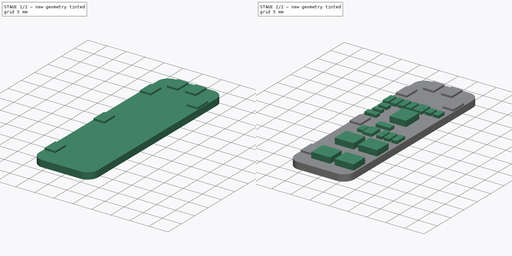
[diagram: build sequence overview — one tinted view per stage of 2, left to right]
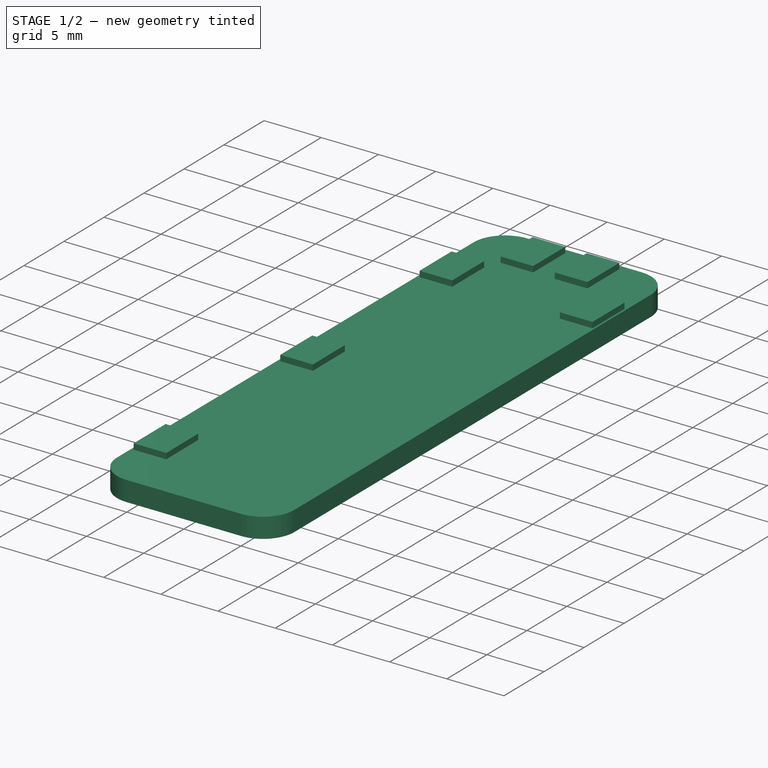
[diagram: stage 1 of 2 — iso view after this stage's code; geometry added in this stage tinted green]
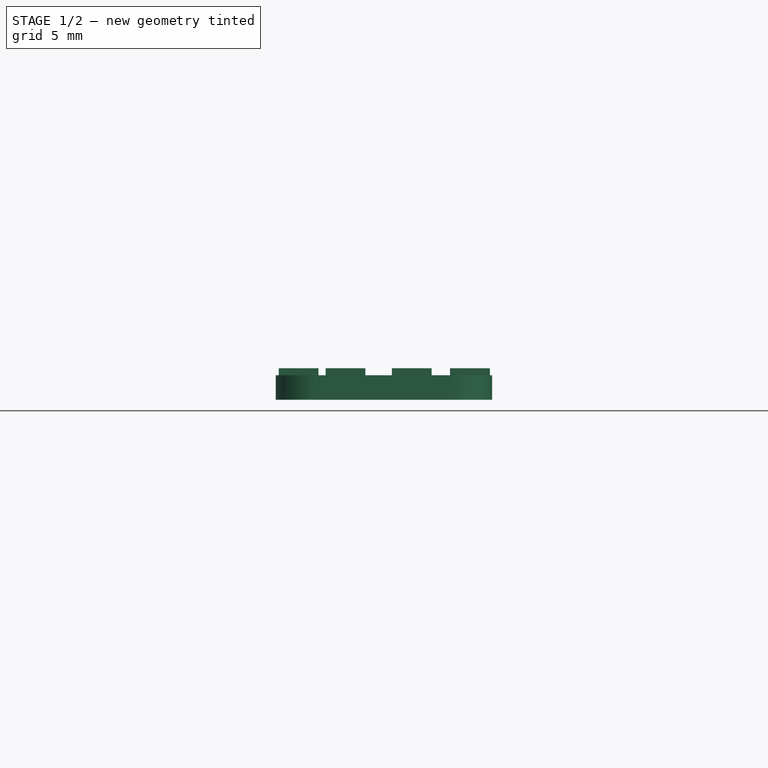
[diagram: stage 1 of 2 — front view after this stage's code; geometry added in this stage tinted green]
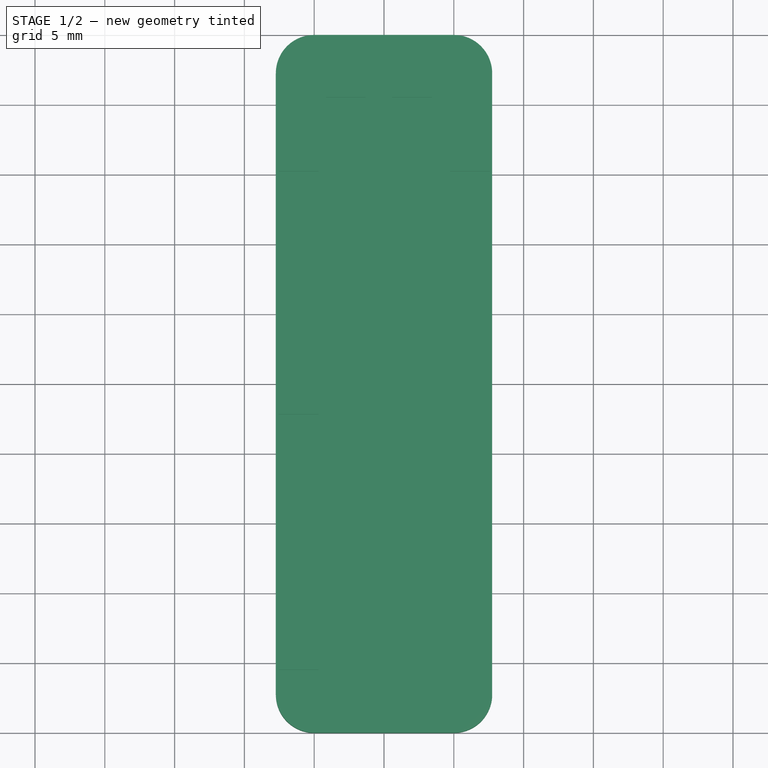
[diagram: stage 1 of 2 — top view after this stage's code; geometry added in this stage tinted green]
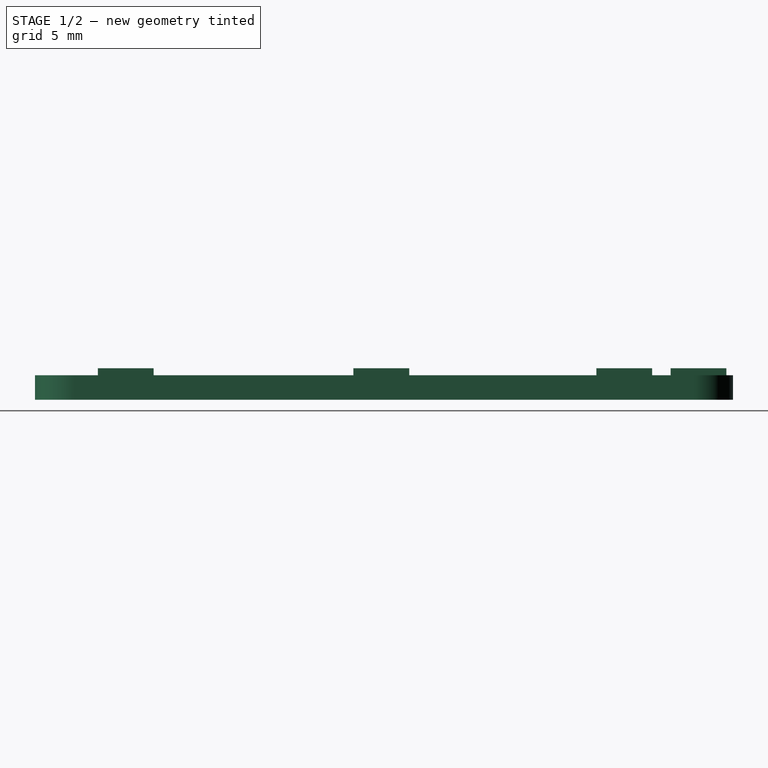
[diagram: stage 1 of 2 — right view after this stage's code; geometry added in this stage tinted green]
FCSTD DOCUMENT  (FreeCAD 1.0R39109 (Git))
Label: bms_186503s
License: All rights reserved
LicenseURL: http://en.wikipedia.org/wiki/All_rights_reserved
objects: Sketcher::SketchObject×4, PartDesign::Pad×4, Image::ImagePlane×1, PartDesign::Body×1
note: 21 computed .brp shape members not serialized (recipe doc carries the construction recipe); baked Part::Feature solids carry a one-line shape summary decoded from their .brp

FEATURE [Sketcher::SketchObject] Sketch
  ArcFitTolerance = 1e-06
  AttachmentSupport = -> [XY_Plane]
  FullyConstrained = true
  MakeInternals = false
  MapMode = 5
  sketch-geometry (10):
    g0: LineSegment StartX=-7.75 StartY=22.25 StartZ=0 EndX=-7.75 EndY=-22.25 EndZ=0
    g1: LineSegment StartX=-5 StartY=-25 StartZ=0 EndX=5 EndY=-25 EndZ=0
    g2: LineSegment StartX=7.75 StartY=-22.25 StartZ=0 EndX=7.75 EndY=22.25 EndZ=0
    g3: LineSegment StartX=5 StartY=25 StartZ=0 EndX=-5 EndY=25 EndZ=0
    g4: ArcOfCircle CenterX=-5 CenterY=22.25 CenterZ=0 NormalX=0 NormalY=0 NormalZ=1 AngleXU=0 Radius=2.75 StartAngle=1.5708 EndAngle=3.14159
    g5: ArcOfCircle CenterX=-5 CenterY=-22.25 CenterZ=0 NormalX=0 NormalY=0 NormalZ=1 AngleXU=0 Radius=2.75 StartAngle=3.14159 EndAngle=4.71239
    g6: ArcOfCircle CenterX=5 CenterY=-22.25 CenterZ=0 NormalX=0 NormalY=0 NormalZ=1 AngleXU=0 Radius=2.75 StartAngle=4.71239 EndAngle=6.28319
    g7: ArcOfCircle CenterX=5 CenterY=22.25 CenterZ=0 NormalX=0 NormalY=0 NormalZ=1 AngleXU=0 Radius=2.75 StartAngle=0 EndAngle=1.5708
    g8: GeomPoint [constr] X=-7.75 Y=25 Z=0
    g9: GeomPoint [constr] X=7.75 Y=-25 Z=0
  constraints (23):
    c: Tangent(g0,g4) = -1.5708
    c: Tangent(g0,g5) = -1.5708
    c: Tangent(g1,g5) = -1.5708
    c: Tangent(g1,g6) = -1.5708
    c: Tangent(g2,g6) = -1.5708
    c: Tangent(g2,g7) = -1.5708
    c: Tangent(g3,g7) = -1.5708
    c: Tangent(g3,g4) = -1.5708
    c: Vertical(g0)
    c: Vertical(g2)
    c: Horizontal(g1)
    c: Horizontal(g3)
    c: Equal(g4,g5)
    c: Equal(g5,g6)
    c: Equal(g6,g7)
    c: PointOnObject(g8,g0)
    c: PointOnObject(g8,g3)
    c: PointOnObject(g9,g1)
    c: PointOnObject(g9,g2)
    c: Symmetric(g9,g8,g-1)
    c: DistanceX(g0,g2) = 15.5
    c: DistanceY(g1,g3) = 50
    c: DistanceX(g1,g1) = 10
FEATURE [PartDesign::Pad] Pad  label="PCBPad"
  Direction = (0,0,1)
  Length = 1.75
  Length2 = 10
  Profile = -> Sketch
  ReferenceAxis = -> Sketch [N_Axis]
  Refine = true
  Suppressed = false
  Type = 0
FEATURE [Image::ImagePlane] bms3s
  Placement = pos=(0,0,0) rot=(0,0,1;1.5708rad)
  XSize = 56.907
  YSize = 21.0735
  expr: XSize = 126.46 * 0.45 mm
  expr: YSize = 46.83 * 0.45 mm
FEATURE [Sketcher::SketchObject] Sketch001
  ArcFitTolerance = 1e-06
  AttachmentSupport = -> [Pad]
  FullyConstrained = true
  MakeInternals = false
  MapMode = 5
  Placement = pos=(0,0,1.75) rot=(0,0,1;0rad)
  sketch-geometry (24):
    g0: LineSegment StartX=-7.54 StartY=19.21 StartZ=0 EndX=-7.54 EndY=15.21 EndZ=0
    g1: LineSegment StartX=-7.54 StartY=15.21 StartZ=0 EndX=-4.69 EndY=15.21 EndZ=0
    g2: LineSegment StartX=-4.69 StartY=15.21 StartZ=0 EndX=-4.69 EndY=19.21 EndZ=0
    g3: LineSegment StartX=-4.69 StartY=19.21 StartZ=0 EndX=-7.54 EndY=19.21 EndZ=0
    g4: LineSegment StartX=-4.18 StartY=24.53 StartZ=0 EndX=-4.18 EndY=20.53 EndZ=0
    g5: LineSegment StartX=-4.18 StartY=20.53 StartZ=0 EndX=-1.33 EndY=20.53 EndZ=0
    g6: LineSegment StartX=-1.33 StartY=20.53 StartZ=0 EndX=-1.33 EndY=24.53 EndZ=0
    g7: LineSegment StartX=-1.33 StartY=24.53 StartZ=0 EndX=-4.18 EndY=24.53 EndZ=0
    g8: LineSegment StartX=0.56 StartY=24.53 StartZ=0 EndX=0.56 EndY=20.53 EndZ=0
    g9: LineSegment StartX=0.56 StartY=20.53 StartZ=0 EndX=3.41 EndY=20.53 EndZ=0
    g10: LineSegment StartX=3.41 StartY=20.53 StartZ=0 EndX=3.41 EndY=24.53 EndZ=0
    g11: LineSegment StartX=3.41 StartY=24.53 StartZ=0 EndX=0.56 EndY=24.53 EndZ=0
    g12: LineSegment StartX=4.73 StartY=19.21 StartZ=0 EndX=4.73 EndY=15.21 EndZ=0
    g13: LineSegment StartX=4.73 StartY=15.21 StartZ=0 EndX=7.58 EndY=15.21 EndZ=0
    g14: LineSegment StartX=7.58 StartY=15.21 StartZ=0 EndX=7.58 EndY=19.21 EndZ=0
    g15: LineSegment StartX=7.58 StartY=19.21 StartZ=0 EndX=4.73 EndY=19.21 EndZ=0
    g16: LineSegment StartX=-7.54 StartY=1.81 StartZ=0 EndX=-7.54 EndY=-2.19 EndZ=0
    g17: LineSegment StartX=-7.54 StartY=-2.19 StartZ=0 EndX=-4.69 EndY=-2.19 EndZ=0
    g18: LineSegment StartX=-4.69 StartY=-2.19 StartZ=0 EndX=-4.69 EndY=1.81 EndZ=0
    g19: LineSegment StartX=-4.69 StartY=1.81 StartZ=0 EndX=-7.54 EndY=1.81 EndZ=0
    g20: LineSegment StartX=-7.54 StartY=-16.5 StartZ=0 EndX=-7.54 EndY=-20.5 EndZ=0
    g21: LineSegment StartX=-7.54 StartY=-20.5 StartZ=0 EndX=-4.69 EndY=-20.5 EndZ=0
    g22: LineSegment StartX=-4.69 StartY=-20.5 StartZ=0 EndX=-4.69 EndY=-16.5 EndZ=0
    g23: LineSegment StartX=-4.69 StartY=-16.5 StartZ=0 EndX=-7.54 EndY=-16.5 EndZ=0
  constraints (72):
    c: Coincident(g0,g1)
    c: Coincident(g1,g2)
    c: Coincident(g2,g3)
    c: Coincident(g3,g0)
    c: Vertical(g0)
    c: Vertical(g2)
    c: Horizontal(g1)
    c: Horizontal(g3)
    c: Coincident(g4,g5)
    c: Coincident(g5,g6)
    c: Coincident(g6,g7)
    c: Coincident(g7,g4)
    c: Vertical(g4)
    c: Vertical(g6)
    c: Horizontal(g5)
    c: Horizontal(g7)
    c: Coincident(g8,g9)
    c: Coincident(g9,g10)
    c: Coincident(g10,g11)
    c: Coincident(g11,g8)
    c: Vertical(g8)
    c: Vertical(g10)
    c: Horizontal(g9)
    c: Horizontal(g11)
    c: Coincident(g12,g13)
    c: Coincident(g13,g14)
    c: Coincident(g14,g15)
    c: Coincident(g15,g12)
    c: Vertical(g12)
    c: Vertical(g14)
    c: Horizontal(g13)
    c: Horizontal(g15)
    c: Coincident(g16,g17)
    c: Coincident(g17,g18)
    c: Coincident(g18,g19)
    c: Coincident(g19,g16)
    c: Vertical(g16)
    c: Vertical(g18)
    c: Horizontal(g17)
    c: Horizontal(g19)
    c: Coincident(g20,g21)
    c: Coincident(g21,g22)
    c: Coincident(g22,g23)
    c: Coincident(g23,g20)
    c: Vertical(g20)
    c: Vertical(g22)
    c: Horizontal(g21)
    c: Horizontal(g23)
    c: Equal(g23,g17)
    c: Equal(g17,g1)
    c: Equal(g1,g13)
    c: Equal(g13,g9)
    c: Equal(g9,g5)
    c: Equal(g4,g8)
    c: Equal(g8,g2)
    c: Equal(g2,g12)
    c: Equal(g12,g18)
    c: Equal(g18,g22)
    c: DistanceY(g22,g22) = 4
    c: DistanceX(g23,g23) = 2.85
    c: Vertical(g22,g17)
    c: Vertical(g17,g1)
    c: Horizontal(g1,g12)
    c: Horizontal(g8,g5)
    c: DistanceX(g5,g8) = 1.89
    c: DistanceY(g12,g9) = 1.32
    c: DistanceX(g2,g4) = 0.51
    c: DistanceX(g18,g-1) = 4.69
    c: DistanceY(g18,g1) = 13.4
    c: DistanceY(g-1,g18) = 1.81
    c: DistanceX(g9,g12) = 1.32
    c: DistanceY(g22,g17) = 14.31
FEATURE [PartDesign::Pad] Pad001  label="SolderPads"
  BaseFeature = -> Pad
  Direction = (0,0,1)
  Length = 0.5
  Length2 = 10
  Profile = -> Sketch001
  ReferenceAxis = -> Sketch001 [N_Axis]
  Refine = true
  Suppressed = false
  Type = 0
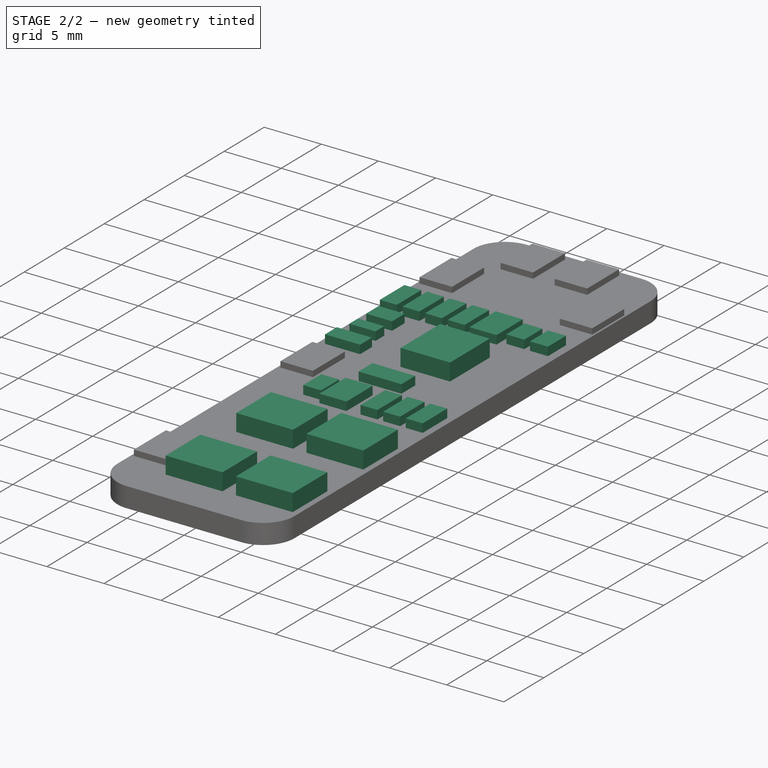
[diagram: stage 2 of 2 — iso view after this stage's code; geometry added in this stage tinted green]
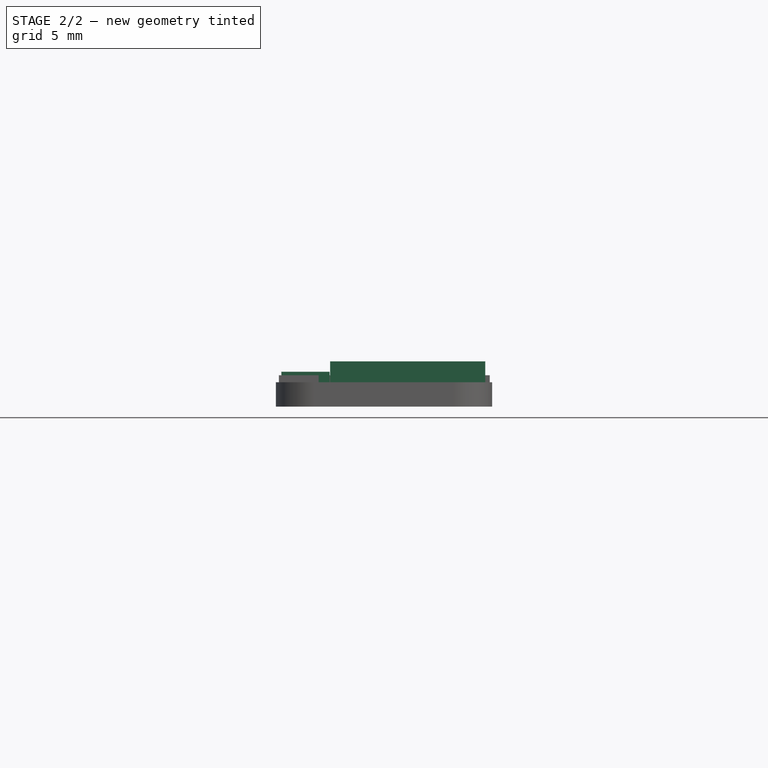
[diagram: stage 2 of 2 — front view after this stage's code; geometry added in this stage tinted green]
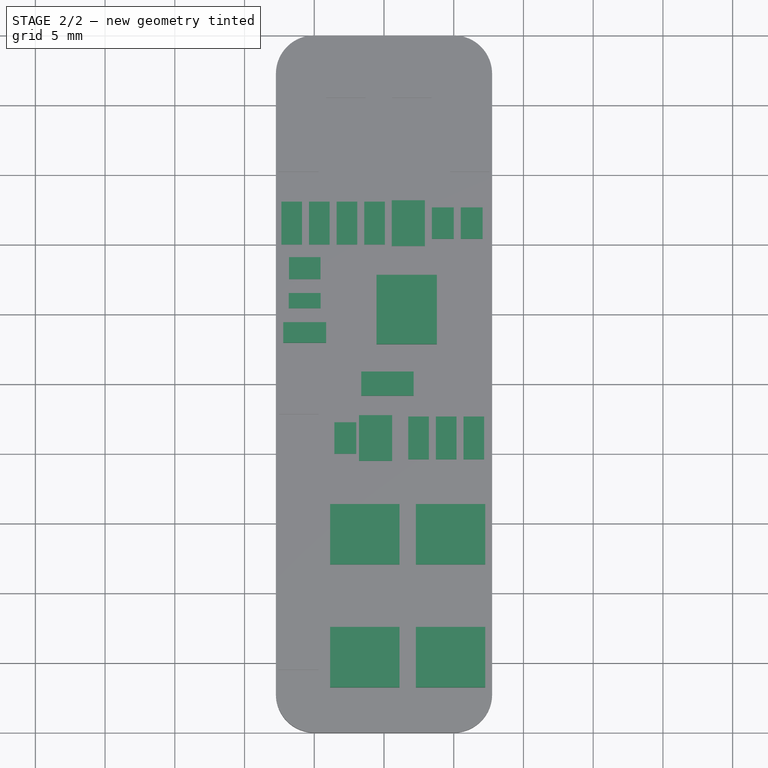
[diagram: stage 2 of 2 — top view after this stage's code; geometry added in this stage tinted green]
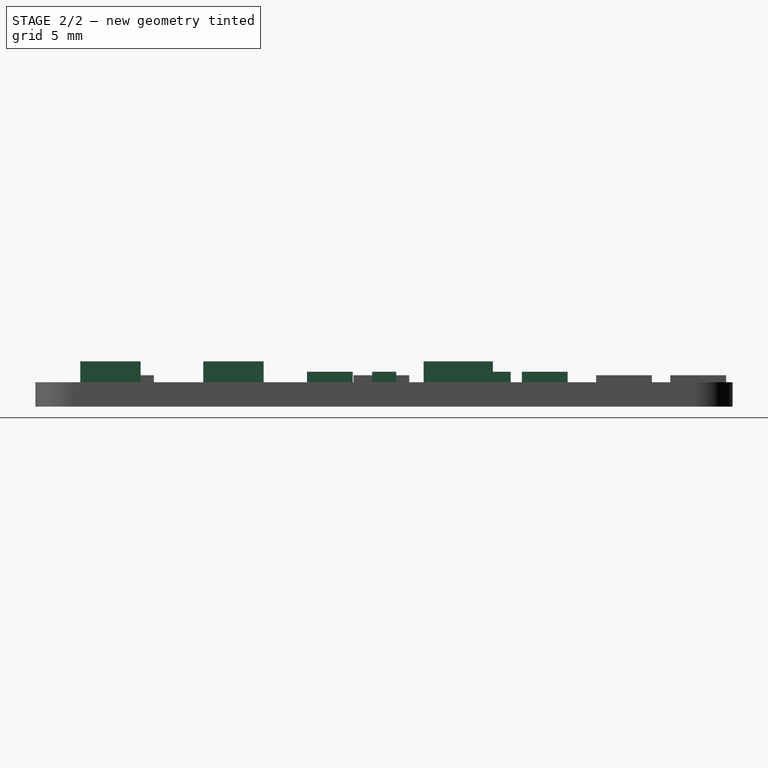
[diagram: stage 2 of 2 — right view after this stage's code; geometry added in this stage tinted green]
FEATURE [Sketcher::SketchObject] Sketch002
  ArcFitTolerance = 1e-06
  AttachmentSupport = -> [Pad001]
  FullyConstrained = true
  MakeInternals = false
  MapMode = 5
  Placement = pos=(0,0,1.75) rot=(0,0,1;0rad)
  sketch-geometry (20):
    g0: LineSegment StartX=-0.54 StartY=7.81 StartZ=0 EndX=-0.54 EndY=2.84 EndZ=0
    g1: LineSegment StartX=-0.54 StartY=2.84 StartZ=0 EndX=3.79 EndY=2.84 EndZ=0
    g2: LineSegment StartX=3.79 StartY=2.84 StartZ=0 EndX=3.79 EndY=7.81 EndZ=0
    g3: LineSegment StartX=3.79 StartY=7.81 StartZ=0 EndX=-0.54 EndY=7.81 EndZ=0
    g4: LineSegment StartX=-3.86 StartY=-8.63 StartZ=0 EndX=-3.86 EndY=-12.96 EndZ=0
    g5: LineSegment StartX=-3.86 StartY=-12.96 StartZ=0 EndX=1.11 EndY=-12.96 EndZ=0
    g6: LineSegment StartX=1.11 StartY=-12.96 StartZ=0 EndX=1.11 EndY=-8.63 EndZ=0
    g7: LineSegment StartX=1.11 StartY=-8.63 StartZ=0 EndX=-3.86 EndY=-8.63 EndZ=0
    g8: LineSegment StartX=2.29 StartY=-8.63 StartZ=0 EndX=2.29 EndY=-12.96 EndZ=0
    g9: LineSegment StartX=2.29 StartY=-12.96 StartZ=0 EndX=7.26 EndY=-12.96 EndZ=0
    g10: LineSegment StartX=7.26 StartY=-12.96 StartZ=0 EndX=7.26 EndY=-8.63 EndZ=0
    g11: LineSegment StartX=7.26 StartY=-8.63 StartZ=0 EndX=2.29 EndY=-8.63 EndZ=0
    g12: LineSegment StartX=-3.86 StartY=-17.45 StartZ=0 EndX=-3.86 EndY=-21.78 EndZ=0
    g13: LineSegment StartX=-3.86 StartY=-21.78 StartZ=0 EndX=1.11 EndY=-21.78 EndZ=0
    g14: LineSegment StartX=1.11 StartY=-21.78 StartZ=0 EndX=1.11 EndY=-17.45 EndZ=0
    g15: LineSegment StartX=1.11 StartY=-17.45 StartZ=0 EndX=-3.86 EndY=-17.45 EndZ=0
    g16: LineSegment StartX=2.29 StartY=-17.45 StartZ=0 EndX=2.29 EndY=-21.78 EndZ=0
    g17: LineSegment StartX=2.29 StartY=-21.78 StartZ=0 EndX=7.26 EndY=-21.78 EndZ=0
    g18: LineSegment StartX=7.26 StartY=-21.78 StartZ=0 EndX=7.26 EndY=-17.45 EndZ=0
    g19: LineSegment StartX=7.26 StartY=-17.45 StartZ=0 EndX=2.29 EndY=-17.45 EndZ=0
  constraints (60):
    c: Coincident(g0,g1)
    c: Coincident(g1,g2)
    c: Coincident(g2,g3)
    c: Coincident(g3,g0)
    c: Vertical(g0)
    c: Vertical(g2)
    c: Horizontal(g1)
    c: Horizontal(g3)
    c: Coincident(g4,g5)
    c: Coincident(g5,g6)
    c: Coincident(g6,g7)
    c: Coincident(g7,g4)
    c: Vertical(g4)
    c: Vertical(g6)
    c: Horizontal(g5)
    c: Horizontal(g7)
    c: Coincident(g8,g9)
    c: Coincident(g9,g10)
    c: Coincident(g10,g11)
    c: Coincident(g11,g8)
    c: Vertical(g8)
    c: Vertical(g10)
    c: Horizontal(g9)
    c: Horizontal(g11)
    c: Coincident(g12,g13)
    c: Coincident(g13,g14)
    c: Coincident(g14,g15)
    c: Coincident(g15,g12)
    c: Vertical(g12)
    c: Vertical(g14)
    c: Horizontal(g13)
    c: Horizontal(g15)
    c: Coincident(g16,g17)
    c: Coincident(g17,g18)
    c: Coincident(g18,g19)
    c: Coincident(g19,g16)
    c: Vertical(g16)
    c: Vertical(g18)
    c: Horizontal(g17)
    c: Horizontal(g19)
    c: Equal(g11,g7)
    c: Equal(g7,g19)
    c: Equal(g19,g15)
    c: Equal(g15,g2)
    c: Equal(g8,g6)
    c: Equal(g6,g14)
    c: Equal(g14,g16)
    c: Equal(g16,g1)
    c: Horizontal(g8,g5)
    c: Horizontal(g14,g16)
    c: Vertical(g14,g5)
    c: Vertical(g16,g8)
    c: DistanceY(g4) = -8.63
    c: DistanceX(g4) = -3.86
    c: DistanceX(g6,g8) = 1.18
    c: DistanceY(g12,g4) = 4.49
    c: DistanceX(g17,g17) = 4.97
    c: DistanceY(g18,g18) = 4.33
    c: DistanceY(g1) = 2.84
    c: DistanceX(g0) = -0.54
FEATURE [PartDesign::Pad] Pad002  label="ChipsPad"
  BaseFeature = -> Pad001
  Direction = (0,0,1)
  Length = 1.5
  Length2 = 10
  Profile = -> Sketch002
  ReferenceAxis = -> Sketch002 [N_Axis]
  Refine = true
  Suppressed = false
  Type = 0
FEATURE [Sketcher::SketchObject] Sketch003
  ArcFitTolerance = 1e-06
  AttachmentSupport = -> [Pad002]
  FullyConstrained = true
  MakeInternals = false
  MapMode = 5
  Placement = pos=(0,0,1.75) rot=(0,0,1;0rad)
  sketch-geometry (84):
    g0: LineSegment StartX=-3.56 StartY=-2.755 StartZ=0 EndX=-3.56 EndY=-5.015 EndZ=0
    g1: LineSegment StartX=-3.56 StartY=-5.015 StartZ=0 EndX=-1.99 EndY=-5.015 EndZ=0
    g2: LineSegment StartX=-1.99 StartY=-5.015 StartZ=0 EndX=-1.99 EndY=-2.755 EndZ=0
    g3: LineSegment StartX=-1.99 StartY=-2.755 StartZ=0 EndX=-3.56 EndY=-2.755 EndZ=0
    g4: LineSegment StartX=-1.79 StartY=-2.245 StartZ=0 EndX=-1.79 EndY=-5.525 EndZ=0
    g5: LineSegment StartX=-1.79 StartY=-5.525 StartZ=0 EndX=0.58 EndY=-5.525 EndZ=0
    g6: LineSegment StartX=0.58 StartY=-5.525 StartZ=0 EndX=0.58 EndY=-2.245 EndZ=0
    g7: LineSegment StartX=0.58 StartY=-2.245 StartZ=0 EndX=-1.79 EndY=-2.245 EndZ=0
    g8: LineSegment StartX=1.74 StartY=-2.35 StartZ=0 EndX=1.74 EndY=-5.42 EndZ=0
    g9: LineSegment StartX=1.74 StartY=-5.42 StartZ=0 EndX=3.22 EndY=-5.42 EndZ=0
    g10: LineSegment StartX=3.22 StartY=-5.42 StartZ=0 EndX=3.22 EndY=-2.35 EndZ=0
    g11: LineSegment StartX=3.22 StartY=-2.35 StartZ=0 EndX=1.74 EndY=-2.35 EndZ=0
    g12: LineSegment StartX=3.72 StartY=-2.35 StartZ=0 EndX=3.72 EndY=-5.42 EndZ=0
    g13: LineSegment StartX=3.72 StartY=-5.42 StartZ=0 EndX=5.2 EndY=-5.42 EndZ=0
    g14: LineSegment StartX=5.2 StartY=-5.42 StartZ=0 EndX=5.2 EndY=-2.35 EndZ=0
    g15: LineSegment StartX=5.2 StartY=-2.35 StartZ=0 EndX=3.72 EndY=-2.35 EndZ=0
    g16: LineSegment StartX=5.7 StartY=-2.35 StartZ=0 EndX=5.7 EndY=-5.42 EndZ=0
    g17: LineSegment StartX=5.7 StartY=-5.42 StartZ=0 EndX=7.18 EndY=-5.42 EndZ=0
    g18: LineSegment StartX=7.18 StartY=-5.42 StartZ=0 EndX=7.18 EndY=-2.35 EndZ=0
    g19: LineSegment StartX=7.18 StartY=-2.35 StartZ=0 EndX=5.7 EndY=-2.35 EndZ=0
    g20: LineSegment StartX=-6.83 StartY=6.51 StartZ=0 EndX=-6.83 EndY=5.42 EndZ=0
    g21: LineSegment StartX=-6.83 StartY=5.42 StartZ=0 EndX=-4.54 EndY=5.42 EndZ=0
    g22: LineSegment StartX=-4.54 StartY=5.42 StartZ=0 EndX=-4.54 EndY=6.51 EndZ=0
    g23: LineSegment StartX=-4.54 StartY=6.51 StartZ=0 EndX=-6.83 EndY=6.51 EndZ=0
    g24: LineSegment StartX=-6.815 StartY=9.08 StartZ=0 EndX=-6.815 EndY=7.51 EndZ=0
    g25: LineSegment StartX=-6.815 StartY=7.51 StartZ=0 EndX=-4.555 EndY=7.51 EndZ=0
    g26: LineSegment StartX=-4.555 StartY=7.51 StartZ=0 EndX=-4.555 EndY=9.08 EndZ=0
    g27: LineSegment StartX=-4.555 StartY=9.08 StartZ=0 EndX=-6.815 EndY=9.08 EndZ=0
    g28: LineSegment StartX=-7.22 StartY=4.42 StartZ=0 EndX=-7.22 EndY=2.94 EndZ=0
    g29: LineSegment StartX=-7.22 StartY=2.94 StartZ=0 EndX=-4.15 EndY=2.94 EndZ=0
    g30: LineSegment StartX=-4.15 StartY=2.94 StartZ=0 EndX=-4.15 EndY=4.42 EndZ=0
    g31: LineSegment StartX=-4.15 StartY=4.42 StartZ=0 EndX=-7.22 EndY=4.42 EndZ=0
    g32: LineSegment StartX=-7.36 StartY=13.06 StartZ=0 EndX=-7.36 EndY=9.99 EndZ=0
    g33: LineSegment StartX=-7.36 StartY=9.99 StartZ=0 EndX=-5.88 EndY=9.99 EndZ=0
    g34: LineSegment StartX=-5.88 StartY=9.99 StartZ=0 EndX=-5.88 EndY=13.06 EndZ=0
    g35: LineSegment StartX=-5.88 StartY=13.06 StartZ=0 EndX=-7.36 EndY=13.06 EndZ=0
    g36: LineSegment StartX=-5.38 StartY=13.06 StartZ=0 EndX=-5.38 EndY=9.99 EndZ=0
    g37: LineSegment StartX=-5.38 StartY=9.99 StartZ=0 EndX=-3.9 EndY=9.99 EndZ=0
    g38: LineSegment StartX=-3.9 StartY=9.99 StartZ=0 EndX=-3.9 EndY=13.06 EndZ=0
    g39: LineSegment StartX=-3.9 StartY=13.06 StartZ=0 EndX=-5.38 EndY=13.06 EndZ=0
    g40: LineSegment StartX=-3.4 StartY=13.06 StartZ=0 EndX=-3.4 EndY=9.99 EndZ=0
    g41: LineSegment StartX=-3.4 StartY=9.99 StartZ=0 EndX=-1.92 EndY=9.99 EndZ=0
    g42: LineSegment StartX=-1.92 StartY=9.99 StartZ=0 EndX=-1.92 EndY=13.06 EndZ=0
    g43: LineSegment StartX=-1.92 StartY=13.06 StartZ=0 EndX=-3.4 EndY=13.06 EndZ=0
    g44: LineSegment StartX=-1.42 StartY=13.06 StartZ=0 EndX=-1.42 EndY=9.99 EndZ=0
    g45: LineSegment StartX=-1.42 StartY=9.99 StartZ=0 EndX=0.06 EndY=9.99 EndZ=0
    g46: LineSegment StartX=0.06 StartY=9.99 StartZ=0 EndX=0.06 EndY=13.06 EndZ=0
    g47: LineSegment StartX=0.06 StartY=13.06 StartZ=0 EndX=-1.42 EndY=13.06 EndZ=0
    g48: LineSegment StartX=0.56 StartY=13.165 StartZ=0 EndX=0.56 EndY=9.885 EndZ=0
    g49: LineSegment StartX=0.56 StartY=9.885 StartZ=0 EndX=2.93 EndY=9.885 EndZ=0
    g50: LineSegment StartX=2.93 StartY=9.885 StartZ=0 EndX=2.93 EndY=13.165 EndZ=0
    g51: LineSegment StartX=2.93 StartY=13.165 StartZ=0 EndX=0.56 EndY=13.165 EndZ=0
    g52: LineSegment StartX=3.43 StartY=12.655 StartZ=0 EndX=3.43 EndY=10.395 EndZ=0
    g53: LineSegment StartX=3.43 StartY=10.395 StartZ=0 EndX=5 EndY=10.395 EndZ=0
    g54: LineSegment StartX=5 StartY=10.395 StartZ=0 EndX=5 EndY=12.655 EndZ=0
    g55: LineSegment StartX=5 StartY=12.655 StartZ=0 EndX=3.43 EndY=12.655 EndZ=0
    g56: LineSegment StartX=5.5 StartY=12.655 StartZ=0 EndX=5.5 EndY=10.395 EndZ=0
    g57: LineSegment StartX=5.5 StartY=10.395 StartZ=0 EndX=7.07 EndY=10.395 EndZ=0
    g58: LineSegment StartX=7.07 StartY=10.395 StartZ=0 EndX=7.07 EndY=12.655 EndZ=0
    g59: LineSegment StartX=7.07 StartY=12.655 StartZ=0 EndX=5.5 EndY=12.655 EndZ=0
    g60: LineSegment StartX=-1.63 StartY=0.88 StartZ=0 EndX=-1.63 EndY=-0.85 EndZ=0
    g61: LineSegment StartX=-1.63 StartY=-0.85 StartZ=0 EndX=2.12 EndY=-0.85 EndZ=0
    g62: LineSegment StartX=2.12 StartY=-0.85 StartZ=0 EndX=2.12 EndY=0.88 EndZ=0
    g63: LineSegment StartX=2.12 StartY=0.88 StartZ=0 EndX=-1.63 EndY=0.88 EndZ=0
    g64: GeomPoint X=0.06 Y=11.525 Z=0
    g65: GeomPoint X=0.56 Y=11.525 Z=0
    g66: GeomPoint X=2.93 Y=11.525 Z=0
    g67: GeomPoint X=3.43 Y=11.525 Z=0
    g68: GeomPoint X=-5.685 Y=4.42 Z=0
    g69: GeomPoint X=-5.685 Y=5.42 Z=0
    g70: GeomPoint X=-5.685 Y=7.51 Z=0
    g71: GeomPoint X=0.58 Y=-3.885 Z=0
    g72: GeomPoint X=1.74 Y=-3.885 Z=0
    g73: GeomPoint X=-1.99 Y=-3.885 Z=0
    g74: LineSegment [constr] StartX=3.22 StartY=-2.35 StartZ=0 EndX=3.72 EndY=-2.35 EndZ=0
    g75: LineSegment [constr] StartX=5.2 StartY=-2.35 StartZ=0 EndX=5.7 EndY=-2.35 EndZ=0
    g76: LineSegment [constr] StartX=-5.88 StartY=9.99 StartZ=0 EndX=-5.38 EndY=9.99 EndZ=0
    g77: LineSegment [constr] StartX=-3.9 StartY=9.99 StartZ=0 EndX=-3.4 EndY=9.99 EndZ=0
    g78: LineSegment [constr] StartX=-1.92 StartY=9.99 StartZ=0 EndX=-1.42 EndY=9.99 EndZ=0
    g79: LineSegment [constr] StartX=0.06 StartY=9.99 StartZ=0 EndX=0.56 EndY=9.99 EndZ=0
    g80: LineSegment [constr] StartX=3.43 StartY=10.395 StartZ=0 EndX=2.93 EndY=10.395 EndZ=0
    g81: LineSegment [constr] StartX=5 StartY=10.395 StartZ=0 EndX=5.5 EndY=10.395 EndZ=0
    g82: LineSegment [constr] StartX=-5.685 StartY=4.42 StartZ=0 EndX=-5.685 EndY=5.42 EndZ=0
    g83: LineSegment [constr] StartX=-5.685 StartY=7.51 StartZ=0 EndX=-5.685 EndY=6.51 EndZ=0
  constraints (224):
    c: Coincident(g0,g1)
    c: Coincident(g1,g2)
    c: Coincident(g2,g3)
    c: Coincident(g3,g0)
    c: Vertical(g0)
    c: Vertical(g2)
    c: Horizontal(g1)
    c: Horizontal(g3)
    c: Coincident(g4,g5)
    c: Coincident(g5,g6)
    c: Coincident(g6,g7)
    c: Coincident(g7,g4)
    c: Vertical(g4)
    c: Vertical(g6)
    c: Horizontal(g5)
    c: Horizontal(g7)
    c: Coincident(g8,g9)
    c: Coincident(g9,g10)
    c: Coincident(g10,g11)
    c: Coincident(g11,g8)
    c: Vertical(g8)
    c: Vertical(g10)
    c: Horizontal(g9)
    c: Horizontal(g11)
    c: Coincident(g12,g13)
    c: Coincident(g13,g14)
    c: Coincident(g14,g15)
    c: Coincident(g15,g12)
    c: Vertical(g12)
    c: Vertical(g14)
    c: Horizontal(g13)
    c: Horizontal(g15)
    c: Coincident(g16,g17)
    c: Coincident(g17,g18)
    c: Coincident(g18,g19)
    c: Coincident(g19,g16)
    c: Vertical(g16)
    c: Vertical(g18)
    c: Horizontal(g17)
    c: Horizontal(g19)
    c: Coincident(g20,g21)
    c: Coincident(g21,g22)
    c: Coincident(g22,g23)
    c: Coincident(g23,g20)
    c: Vertical(g20)
    c: Vertical(g22)
    c: Horizontal(g21)
    c: Horizontal(g23)
    c: Coincident(g24,g25)
    c: Coincident(g25,g26)
    c: Coincident(g26,g27)
    c: Coincident(g27,g24)
    c: Vertical(g24)
    c: Vertical(g26)
    c: Horizontal(g25)
    c: Horizontal(g27)
    c: Coincident(g28,g29)
    c: Coincident(g29,g30)
    c: Coincident(g30,g31)
    c: Coincident(g31,g28)
    c: Vertical(g28)
    c: Vertical(g30)
    c: Horizontal(g29)
    c: Horizontal(g31)
    c: Coincident(g32,g33)
    c: Coincident(g33,g34)
    c: Coincident(g34,g35)
    c: Coincident(g35,g32)
    c: Vertical(g32)
    c: Vertical(g34)
    c: Horizontal(g33)
    c: Horizontal(g35)
    c: Coincident(g36,g37)
    c: Coincident(g37,g38)
    c: Coincident(g38,g39)
    c: Coincident(g39,g36)
    c: Vertical(g36)
    c: Vertical(g38)
    c: Horizontal(g37)
    c: Horizontal(g39)
    c: Coincident(g40,g41)
    c: Coincident(g41,g42)
    c: Coincident(g42,g43)
    c: Coincident(g43,g40)
    c: Vertical(g40)
    c: Vertical(g42)
    c: Horizontal(g41)
    c: Horizontal(g43)
    c: Coincident(g44,g45)
    c: Coincident(g45,g46)
    c: Coincident(g46,g47)
    c: Coincident(g47,g44)
    c: Vertical(g44)
    c: Vertical(g46)
    c: Horizontal(g45)
    c: Horizontal(g47)
    c: Coincident(g48,g49)
    c: Coincident(g49,g50)
    c: Coincident(g50,g51)
    c: Coincident(g51,g48)
    c: Vertical(g48)
    c: Vertical(g50)
    c: Horizontal(g49)
    c: Horizontal(g51)
    c: Coincident(g52,g53)
    c: Coincident(g53,g54)
    c: Coincident(g54,g55)
    c: Coincident(g55,g52)
    c: Vertical(g52)
    c: Vertical(g54)
    c: Horizontal(g53)
    c: Horizontal(g55)
    c: Coincident(g56,g57)
    c: Coincident(g57,g58)
    c: Coincident(g58,g59)
    c: Coincident(g59,g56)
    c: Vertical(g56)
    c: Vertical(g58)
    c: Horizontal(g57)
    c: Horizontal(g59)
    c: Coincident(g60,g61)
    c: Coincident(g61,g62)
    c: Coincident(g62,g63)
    c: Coincident(g63,g60)
    c: Vertical(g60)
    c: Vertical(g62)
    c: Horizontal(g61)
    c: Horizontal(g63)
    c: Equal(g49,g7)
    c: Equal(g6,g48)
    c: Equal(g26,g53)
    c: Equal(g53,g57)
    c: Equal(g57,g3)
    c: Equal(g25,g0)
    c: Equal(g0,g54)
    c: Equal(g54,g56)
    c: Equal(g34,g36)
    c: Equal(g36,g40)
    c: Equal(g40,g44)
    c: Equal(g44,g8)
    c: Equal(g8,g12)
    c: Equal(g12,g16)
    c: Equal(g19,g11)
    c: Equal(g11,g15)
    c: Equal(g15,g30)
    c: Equal(g30,g33)
    c: Equal(g33,g37)
    c: Equal(g37,g41)
    c: Equal(g41,g45)
    c: Horizontal(g34,g36)
    c: Horizontal(g36,g40)
    c: Horizontal(g40,g44)
    c: Symmetric(g46,g46,g64)
    c: Symmetric(g48,g48,g65)
    c: Symmetric(g50,g50,g66)
    c: Symmetric(g52,g52,g67)
    c: Horizontal(g52,g56)
    c: Horizontal(g67,g64)
    c: Horizontal(g64,g65)
    c: Symmetric(g31,g31,g68)
    c: Symmetric(g21,g21,g69)
    c: Symmetric(g25,g25,g70)
    c: Vertical(g70,g69)
    c: Vertical(g69,g68)
    c: Horizontal(g16,g12)
    c: Horizontal(g12,g8)
    c: Symmetric(g6,g6,g71)
    c: Symmetric(g8,g8,g72)
    c: Symmetric(g1,g2,g73)
    c: Horizontal(g73,g71)
    c: Horizontal(g71,g72)
    c: DistanceX(g17,g17) = 1.48
    c: DistanceY(g18,g18) = 3.07
    c: Coincident(g74,g10)
    c: Coincident(g74,g12)
    c: Coincident(g75,g16)
    c: Equal(g74,g75)
    c: DistanceX(g75,g75) = 0.5
    c: DistanceY(g8) = -2.35
    c: DistanceX(g8) = 1.74
    c: Coincident(g75,g14)
    c: Coincident(g76,g33)
    c: Coincident(g76,g36)
    c: Coincident(g77,g37)
    c: Coincident(g77,g40)
    c: Coincident(g78,g41)
    c: Coincident(g78,g44)
    c: Coincident(g79,g45)
    c: PointOnObject(g79,g48)
    c: Horizontal(g79)
    c: Coincident(g80,g52)
    c: PointOnObject(g80,g50)
    c: Horizontal(g80)
    c: Coincident(g81,g53)
    c: Coincident(g81,g56)
    c: Equal(g81,g80)
    c: Equal(g80,g79)
    c: Equal(g79,g78)
    c: Equal(g78,g77)
    c: Equal(g77,g76)
    c: Equal(g76,g74)
    c: DistanceX(g44) = -1.42
    c: DistanceY(g44) = 9.99
    c: DistanceX(g51,g51) = 2.37
    c: DistanceY(g50,g50) = 3.28
    c: DistanceX(g55,g55) = 1.57
    c: DistanceY(g58,g58) = 2.26
    c: DistanceY(g60) = 0.88
    c: DistanceX(g62) = 2.12
    c: DistanceY(g62,g62) = 1.73
    c: DistanceX(g61,g61) = 3.75
    c: Coincident(g82,g68)
    c: Coincident(g82,g69)
    c: Coincident(g83,g70)
    c: Symmetric(g23,g23,g83)
    c: Equal(g83,g82)
    c: DistanceY(g82,g82) = 1
    c: DistanceY(g29) = 2.94
    c: DistanceX(g29) = -4.15
    c: Equal(g29,g10)
    c: DistanceX(g2,g4) = 0.2
    c: DistanceX(g6,g8) = 1.16
    c: DistanceX(g23,g23) = 2.29
    c: DistanceY(g22,g22) = 1.09
FEATURE [PartDesign::Pad] Pad003  label="ElectronicsPad"
  BaseFeature = -> Pad002
  Direction = (0,0,1)
  Length = 0.75
  Length2 = 10
  Profile = -> Sketch003
  ReferenceAxis = -> Sketch003 [N_Axis]
  Refine = true
  Suppressed = false
  Type = 0
FEATURE [PartDesign::Body] Body  label="bms3s001"
  AllowCompound = false
  Group = -> [Sketch,Pad,Sketch001,Pad001,Sketch002,Pad002,Sketch003,Pad003]
  Origin = -> Origin
  Tip = -> Pad003
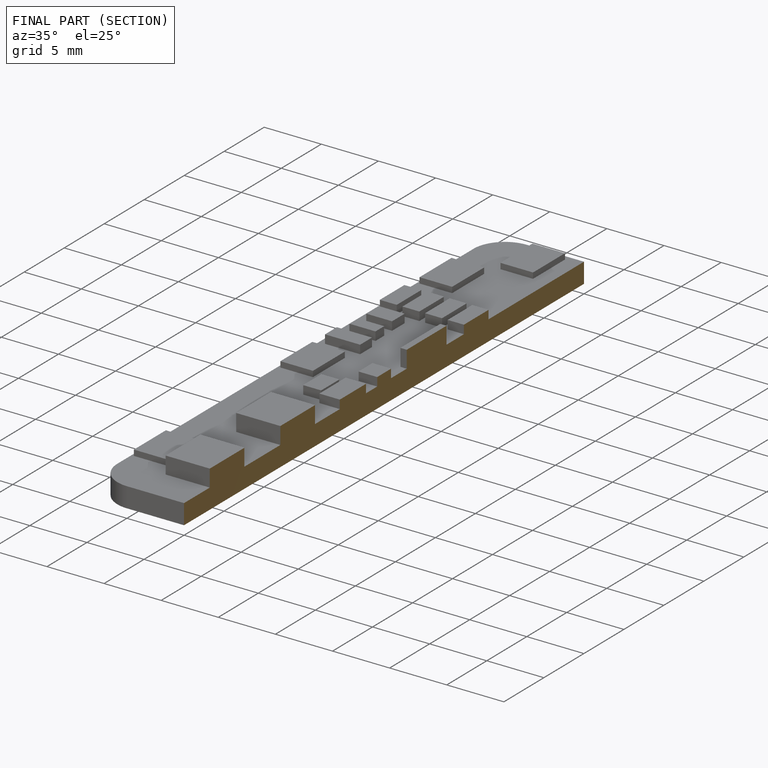
[diagram: finished part — half-section view (interior)]
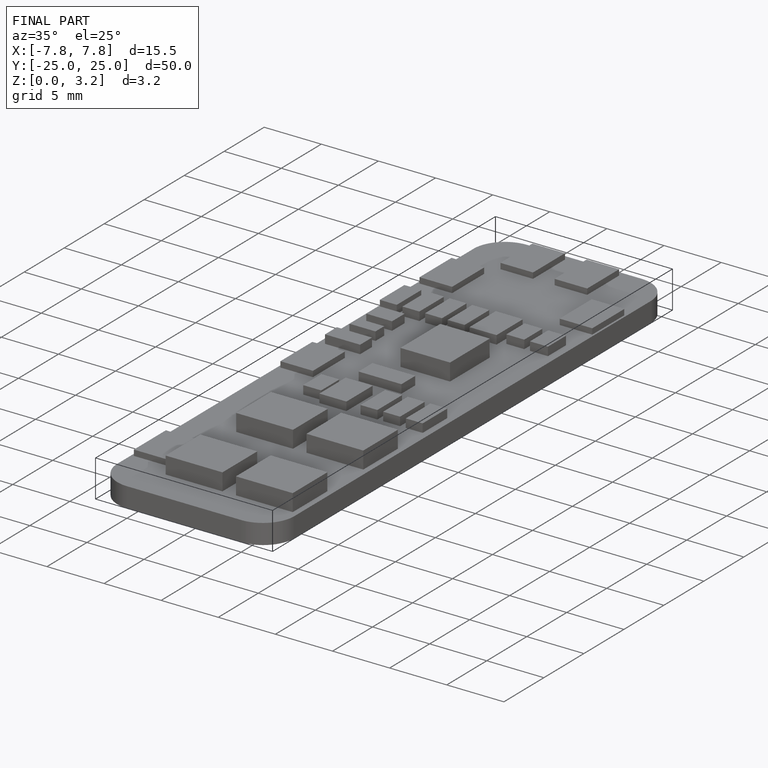
[diagram: finished part — iso view with bounding-box wireframe]
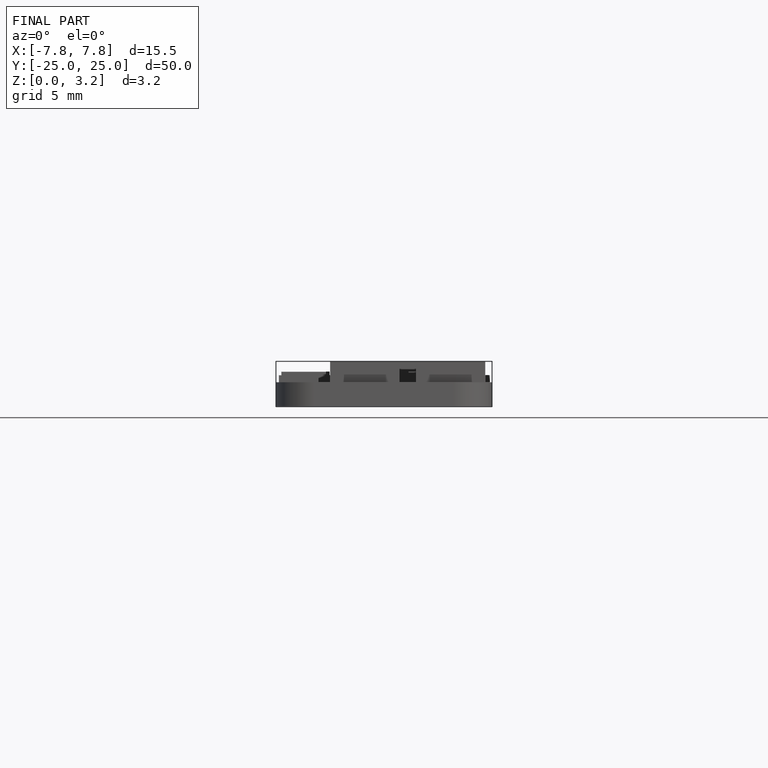
[diagram: finished part — front view with bounding-box wireframe]
